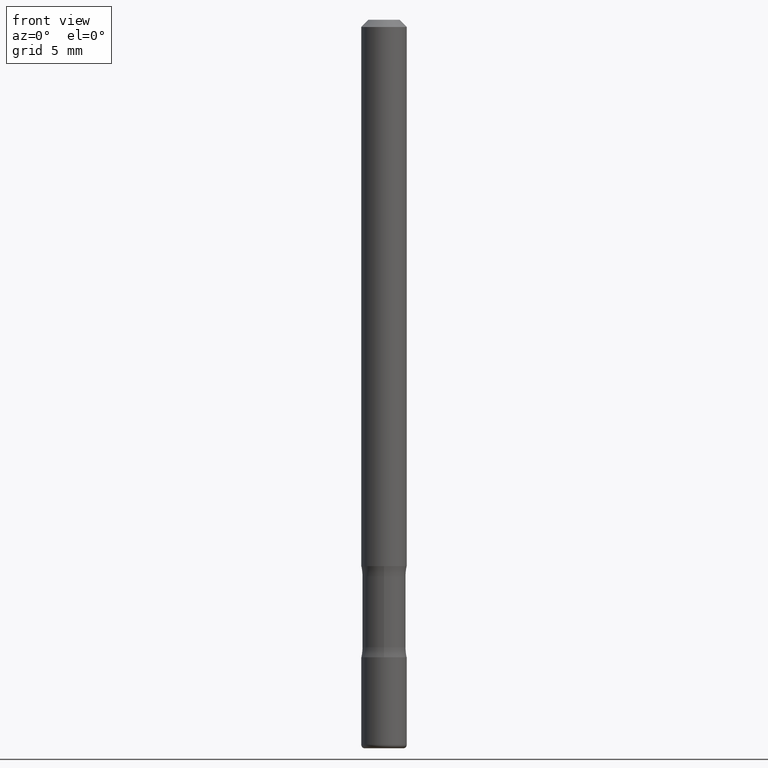
[diagram: clean part render]
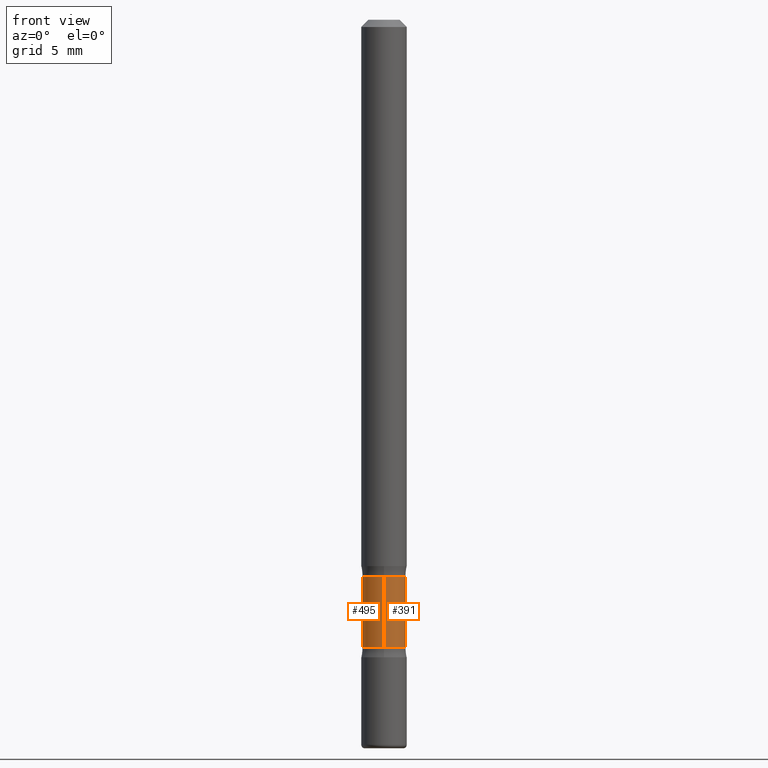
[diagram: same view with one multi-face feature highlighted, each face labeled with its STEP entity id]
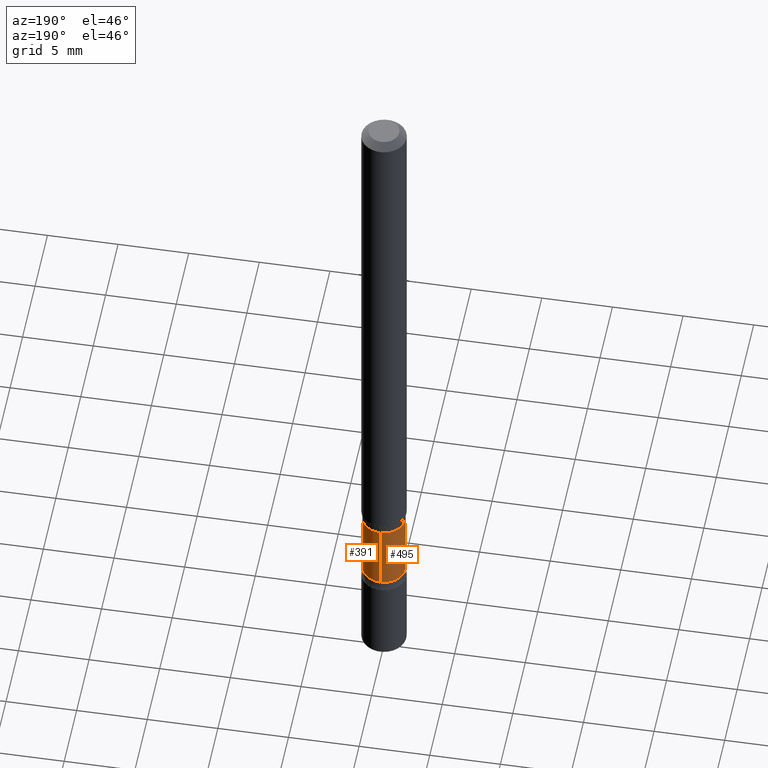
[diagram: same view with one multi-face feature highlighted, each face labeled with its STEP entity id]
A machine part, front view. The highlighted faces form ONE feature: a constant-radius fillet chain: 2 tangent blend faces with common blend radius 1.5081 mm. The faces share edges in the B-rep.
A second angle (auxiliary view) of the same feature is appended — it is thin or edge-on in the first view.
Their STEP definitions:
[1] entity #495 (Cylinder):
#7 = EDGE_CURVE ( 'NONE', #475, #29, #316, .T. ) ;
#20 = DIRECTION ( 'NONE',  ( 6.982962677686266711E-15, 1.000000000000000000, -4.601007147224048087E-15 ) ) ;
#29 = VERTEX_POINT ( 'NONE', #372 ) ;
#68 = DIRECTION ( 'NONE',  ( 8.010757980930134339E-30, -5.846345719468729014E-15, -1.000000000000000000 ) ) ;
#75 = VECTOR ( 'NONE', #257, 39.37007874015748143 ) ;
#92 = LINE ( 'NONE', #261, #123 ) ;
#110 = CARTESIAN_POINT ( 'NONE',  ( -4.180615967391589820E-16, -0.05937500000000418832, -1.527775607554111792 ) ) ;
#111 = CARTESIAN_POINT ( 'NONE',  ( 4.101551828289662394E-29, -4.810891717437951800E-15, -1.527775607554112014 ) ) ;
#123 = VECTOR ( 'NONE', #311, 39.37007874015748143 ) ;
#133 = CARTESIAN_POINT ( 'NONE',  ( -4.073420686176375718E-16, -0.05937500000000724837, -1.999999999999998002 ) ) ;
#177 = AXIS2_PLACEMENT_3D ( 'NONE', #407, #244, #20 ) ;
#180 = CARTESIAN_POINT ( 'NONE',  ( 4.146134089876643393E-16, 0.05937499999999401590, -1.722224392445885544 ) ) ;
#185 = CIRCLE ( 'NONE', #397, 0.05937499999999996253 ) ;
#186 = VERTEX_POINT ( 'NONE', #284 ) ;
#189 = ORIENTED_EDGE ( 'NONE', *, *, #413, .F. ) ;
#222 = DIRECTION ( 'NONE',  ( 6.982962677686265133E-15, 1.000000000000000000, -4.601007147224025211E-15 ) ) ;
#233 = ORIENTED_EDGE ( 'NONE', *, *, #297, .T. ) ;
#244 = DIRECTION ( 'NONE',  ( 8.010757980930134339E-30, -5.846345719468729014E-15, -1.000000000000000000 ) ) ;
#257 = DIRECTION ( 'NONE',  ( 8.010757980930134339E-30, -5.846345719468729014E-15, -1.000000000000000000 ) ) ;
#261 = CARTESIAN_POINT ( 'NONE',  ( 4.146134089876645858E-16, 0.05937499999999210076, -1.999999999999998668 ) ) ;
#284 = CARTESIAN_POINT ( 'NONE',  ( -4.180615967391622360E-16, -0.05937500000000592304, -1.722224392445884877 ) ) ;
#297 = EDGE_CURVE ( 'NONE', #29, #379, #92, .T. ) ;
#311 = DIRECTION ( 'NONE',  ( 8.010757980930134339E-30, -5.846345719468729014E-15, -1.000000000000000000 ) ) ;
#316 = CIRCLE ( 'NONE', #434, 0.05937499999999937272 ) ;
#344 = FACE_OUTER_BOUND ( 'NONE', #537, .T. ) ;
#363 = DIRECTION ( 'NONE',  ( 6.982962677686266711E-15, 1.000000000000000000, -4.601007147224070964E-15 ) ) ;
#372 = CARTESIAN_POINT ( 'NONE',  ( 4.146134089876587187E-16, 0.05937499999999455713, -1.527775607554112458 ) ) ;
#379 = VERTEX_POINT ( 'NONE', #180 ) ;
#397 = AXIS2_PLACEMENT_3D ( 'NONE', #489, #482, #222 ) ;
#407 = CARTESIAN_POINT ( 'NONE',  ( 4.479839360347238409E-29, -7.571678772842681008E-15, -1.999999999999998446 ) ) ;
#413 = EDGE_CURVE ( 'NONE', #475, #186, #533, .T. ) ;
#414 = ORIENTED_EDGE ( 'NONE', *, *, #536, .F. ) ;
#420 = ORIENTED_EDGE ( 'NONE', *, *, #7, .T. ) ;
#434 = AXIS2_PLACEMENT_3D ( 'NONE', #111, #68, #363 ) ;
#475 = VERTEX_POINT ( 'NONE', #110 ) ;
#482 = DIRECTION ( 'NONE',  ( 8.010757980930134339E-30, -5.846345719468729014E-15, -1.000000000000000000 ) ) ;
#489 = CARTESIAN_POINT ( 'NONE',  ( 4.257320043835055680E-29, -5.947706538645865427E-15, -1.722224392445885321 ) ) ;
#495 = ADVANCED_FACE ( 'NONE', ( #344 ), #558, .T. ) ;
#533 = LINE ( 'NONE', #133, #75 ) ;
#536 = EDGE_CURVE ( 'NONE', #186, #379, #185, .T. ) ;
#537 = EDGE_LOOP ( 'NONE', ( #189, #420, #233, #414 ) ) ;
#558 = CYLINDRICAL_SURFACE ( 'NONE', #177, 0.05937499999999967110 ) ;
[2] entity #391 (Cylinder):
#29 = VERTEX_POINT ( 'NONE', #372 ) ;
#57 = CYLINDRICAL_SURFACE ( 'NONE', #312, 0.05937499999999967110 ) ;
#75 = VECTOR ( 'NONE', #257, 39.37007874015748143 ) ;
#92 = LINE ( 'NONE', #261, #123 ) ;
#96 = DIRECTION ( 'NONE',  ( 8.010757980930134339E-30, -5.846345719468729014E-15, -1.000000000000000000 ) ) ;
#110 = CARTESIAN_POINT ( 'NONE',  ( -4.180615967391589820E-16, -0.05937500000000418832, -1.527775607554111792 ) ) ;
#123 = VECTOR ( 'NONE', #311, 39.37007874015748143 ) ;
#133 = CARTESIAN_POINT ( 'NONE',  ( -4.073420686176375718E-16, -0.05937500000000724837, -1.999999999999998002 ) ) ;
#135 = CARTESIAN_POINT ( 'NONE',  ( 4.257320043835055680E-29, -5.947706538645865427E-15, -1.722224392445885321 ) ) ;
#160 = EDGE_CURVE ( 'NONE', #379, #186, #218, .T. ) ;
#178 = CARTESIAN_POINT ( 'NONE',  ( 4.101551828289662394E-29, -4.810891717437951800E-15, -1.527775607554112014 ) ) ;
#180 = CARTESIAN_POINT ( 'NONE',  ( 4.146134089876643393E-16, 0.05937499999999401590, -1.722224392445885544 ) ) ;
#186 = VERTEX_POINT ( 'NONE', #284 ) ;
#191 = AXIS2_PLACEMENT_3D ( 'NONE', #178, #96, #343 ) ;
#217 = DIRECTION ( 'NONE',  ( 8.010757980930134339E-30, -5.846345719468729014E-15, -1.000000000000000000 ) ) ;
#218 = CIRCLE ( 'NONE', #543, 0.05937499999999996253 ) ;
#232 = DIRECTION ( 'NONE',  ( 8.010757980930134339E-30, -5.846345719468729014E-15, -1.000000000000000000 ) ) ;
#250 = ORIENTED_EDGE ( 'NONE', *, *, #160, .F. ) ;
#257 = DIRECTION ( 'NONE',  ( 8.010757980930134339E-30, -5.846345719468729014E-15, -1.000000000000000000 ) ) ;
#261 = CARTESIAN_POINT ( 'NONE',  ( 4.146134089876645858E-16, 0.05937499999999210076, -1.999999999999998668 ) ) ;
#284 = CARTESIAN_POINT ( 'NONE',  ( -4.180615967391622360E-16, -0.05937500000000592304, -1.722224392445884877 ) ) ;
#297 = EDGE_CURVE ( 'NONE', #29, #379, #92, .T. ) ;
#308 = ORIENTED_EDGE ( 'NONE', *, *, #413, .T. ) ;
#310 = DIRECTION ( 'NONE',  ( 6.982962677686266711E-15, 1.000000000000000000, -4.601007147224048087E-15 ) ) ;
#311 = DIRECTION ( 'NONE',  ( 8.010757980930134339E-30, -5.846345719468729014E-15, -1.000000000000000000 ) ) ;
#312 = AXIS2_PLACEMENT_3D ( 'NONE', #399, #217, #310 ) ;
#323 = ORIENTED_EDGE ( 'NONE', *, *, #297, .F. ) ;
#343 = DIRECTION ( 'NONE',  ( 6.982962677686266711E-15, 1.000000000000000000, -4.601007147224070964E-15 ) ) ;
#372 = CARTESIAN_POINT ( 'NONE',  ( 4.146134089876587187E-16, 0.05937499999999455713, -1.527775607554112458 ) ) ;
#378 = ORIENTED_EDGE ( 'NONE', *, *, #541, .T. ) ;
#379 = VERTEX_POINT ( 'NONE', #180 ) ;
#391 = ADVANCED_FACE ( 'NONE', ( #444 ), #57, .T. ) ;
#399 = CARTESIAN_POINT ( 'NONE',  ( 4.479839360347238409E-29, -7.571678772842681008E-15, -1.999999999999998446 ) ) ;
#413 = EDGE_CURVE ( 'NONE', #475, #186, #533, .T. ) ;
#441 = DIRECTION ( 'NONE',  ( 6.982962677686265133E-15, 1.000000000000000000, -4.601007147224025211E-15 ) ) ;
#444 = FACE_OUTER_BOUND ( 'NONE', #557, .T. ) ;
#475 = VERTEX_POINT ( 'NONE', #110 ) ;
#498 = CIRCLE ( 'NONE', #191, 0.05937499999999937272 ) ;
#533 = LINE ( 'NONE', #133, #75 ) ;
#541 = EDGE_CURVE ( 'NONE', #29, #475, #498, .T. ) ;
#543 = AXIS2_PLACEMENT_3D ( 'NONE', #135, #232, #441 ) ;
#557 = EDGE_LOOP ( 'NONE', ( #378, #308, #250, #323 ) ) ;